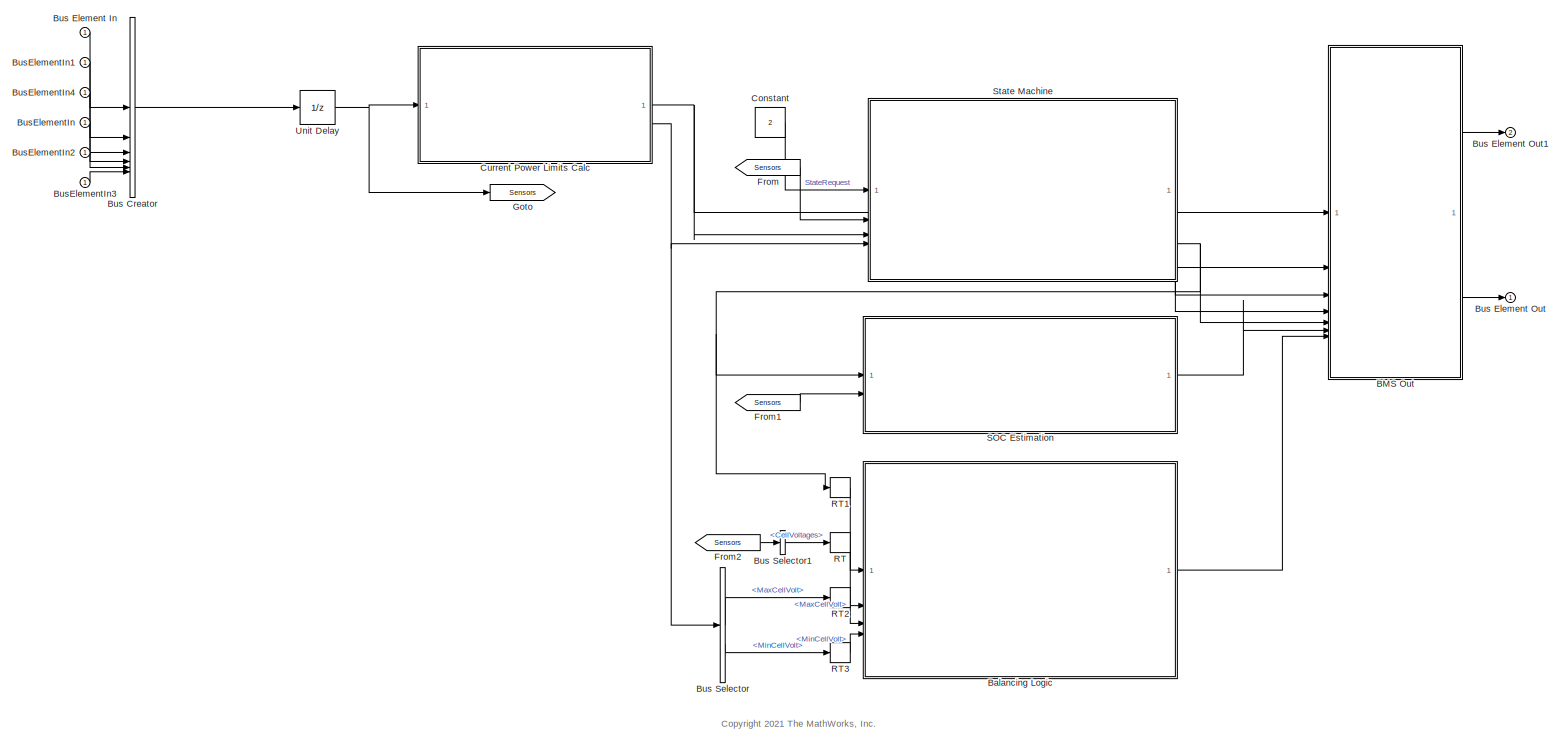
[diagram: root canvas - part 1/1, most of the canvas]
MODEL slx_4404e539bcd6
KIND model
CONFIG AbsTol = auto
CONFIG EnableMultiTasking = off
CONFIG FixedStep = auto
CONFIG MaxStep = auto
CONFIG MinStep = auto
CONFIG RelTol = 1e-3
CONFIG SampleTimeConstraint = Unconstrained
CONFIG SolverName = FixedStepDiscrete
CONFIG StartTime = 0.0
CONFIG StopTime = 10000
BLOCK [ModelReference] BMS Out
  ModelNameDialog = BMSOut.slx
  ModelReferenceVersion = 8.0
BLOCK [ModelReference] Balancing Logic
  ModelNameDialog = BMSBalancingLogic.slx
  ModelReferenceVersion = 8.0
BLOCK [BusCreator] Bus Creator
  DisplayOption = bar
  InheritFromInputs = on
  Inputs = 6
BLOCK [Inport] Bus Element In
BLOCK [Outport] Bus Element Out
BLOCK [Outport] Bus Element Out1
  Port = 2
BLOCK [BusSelector] Bus Selector
  OutputSignals = MaxCellVolt,MinCellVolt
BLOCK [BusSelector] Bus Selector1
  OutputSignals = CellVoltages
BLOCK [Inport] BusElementIn
BLOCK [Inport] BusElementIn1
BLOCK [Inport] BusElementIn2
BLOCK [Inport] BusElementIn3
BLOCK [Inport] BusElementIn4
BLOCK [Constant] Constant
  OutDataTypeStr = single
  SampleTime = -1
  Value = 2
BLOCK [ModelReference] Current Power Limits Calc
  ModelNameDialog = BMSCurrPowerLimCalc.slx
  ModelReferenceVersion = 8.0
BLOCK [From] From
  GotoTag = Sensors
BLOCK [From] From1
  GotoTag = Sensors
BLOCK [From] From2
  GotoTag = Sensors
BLOCK [Goto] Goto
  GotoTag = Sensors
BLOCK [RateTransition] RT
  InitialCondition = 3.6*ones(1, PlntBattNumCellSer)
BLOCK [RateTransition] RT1
  OutPortSampleTime = 5
BLOCK [RateTransition] RT2
  InitialCondition = single(3.6)
  OutPortSampleTime = 5
BLOCK [RateTransition] RT3
  InitialCondition = single(3.6)
  OutPortSampleTime = 5
BLOCK [ModelReference] SOC Estimation
  ModelNameDialog = BMSSOCEstimation.slx
  ModelReferenceVersion = 8.1
BLOCK [ModelReference] State Machine
  ModelNameDialog = BMSStateMachine.slx
  ModelReferenceVersion = 8.0
BLOCK [UnitDelay] Unit Delay
  HasFrameUpgradeWarning = on
  InitialCondition = struct('CellVoltages',3.6*ones(1, PlntBattNumCellSer),'PackVoltage',3.6*PlntBattNumCellSer,'PackCurrent',0,'CellTemperatures',PlntBattTempInitDegC*ones(1,PlntBattNumCellSer),'VoutChgr',0,'VoutInvtr',0)
  SampleTime = -1
ANNOTATION (root): <copyright redacted>
LINE BMS Out:1 -> Bus Element Out1:1
LINE BMS Out:2 -> Bus Element Out:1
LINE Balancing Logic:1 -> BMS Out:7
LINE Bus Creator:1 -> Unit Delay:1
LINE Bus Element In:1 -> Bus Creator:1
LINE Bus Selector1:1 -> RT:1
LINE Bus Selector:1 -> RT2:1
LINE Bus Selector:2 -> RT3:1
LINE BusElementIn1:1 -> Bus Creator:2
LINE BusElementIn2:1 -> Bus Creator:5
LINE BusElementIn3:1 -> Bus Creator:6
LINE BusElementIn4:1 -> Bus Creator:3
LINE BusElementIn:1 -> Bus Creator:4
LINE Constant:1 -> State Machine:1
NET Current Power Limits Calc:1 -> BMS Out:1, State Machine:3
NET Current Power Limits Calc:2 -> Bus Selector:1, State Machine:4
LINE From1:1 -> SOC Estimation:2
LINE From2:1 -> Bus Selector1:1
LINE From:1 -> State Machine:2
LINE RT1:1 -> Balancing Logic:1
LINE RT2:1 -> Balancing Logic:3
LINE RT3:1 -> Balancing Logic:4
LINE RT:1 -> Balancing Logic:2
LINE SOC Estimation:1 -> BMS Out:6
LINE State Machine:1 -> BMS Out:2
LINE State Machine:2 -> BMS Out:3
LINE State Machine:3 -> BMS Out:4
NET State Machine:4 -> BMS Out:5, RT1:1, SOC Estimation:1
NET Unit Delay:1 -> Current Power Limits Calc:1, Goto:1
note: NET lines group one-source signal fan-out (src -> all destinations, sorted); 1:1 wires keep LINE
